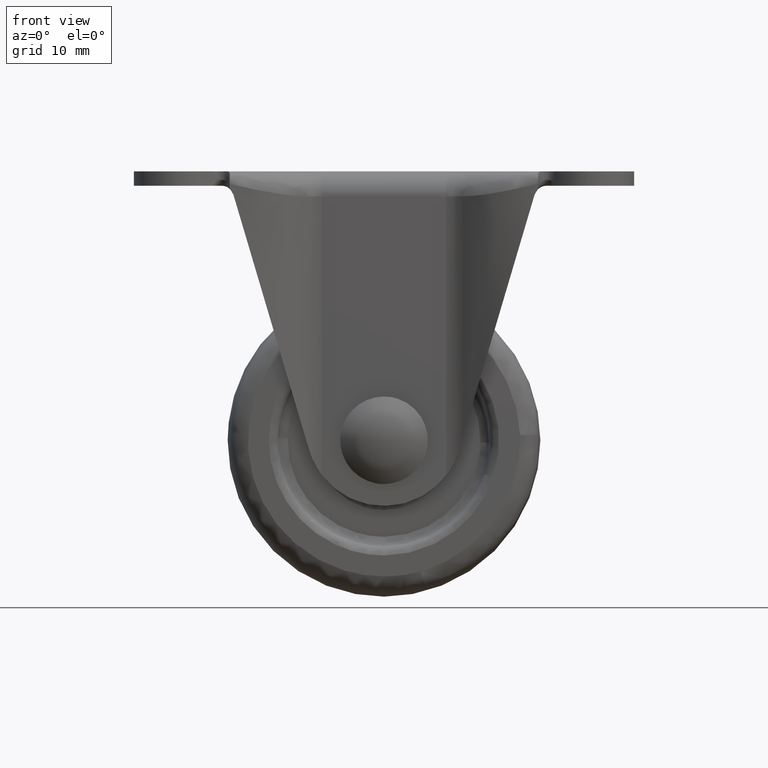
[diagram: clean part render]
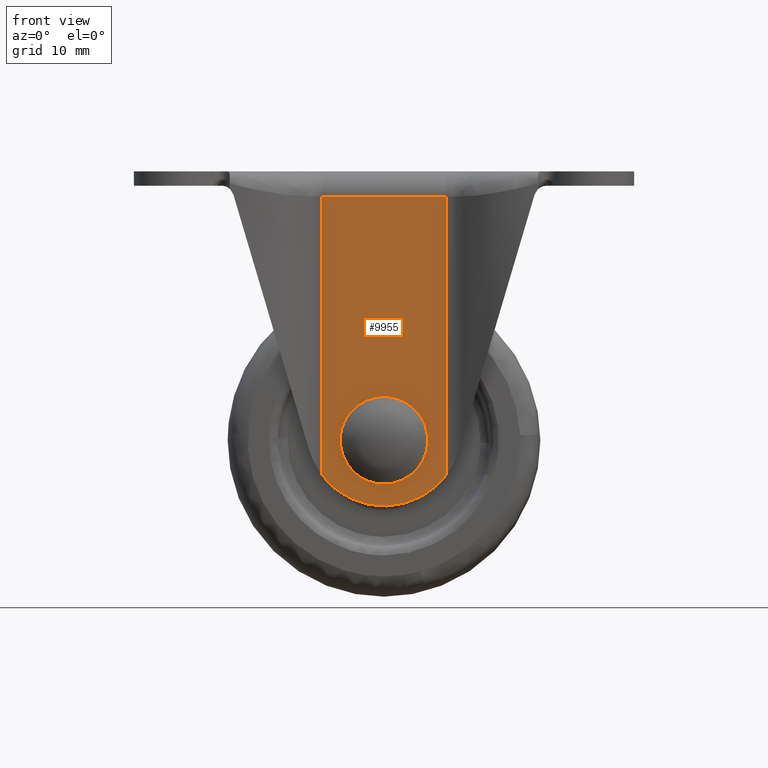
[diagram: same view with one face highlighted and labeled with its STEP entity id]
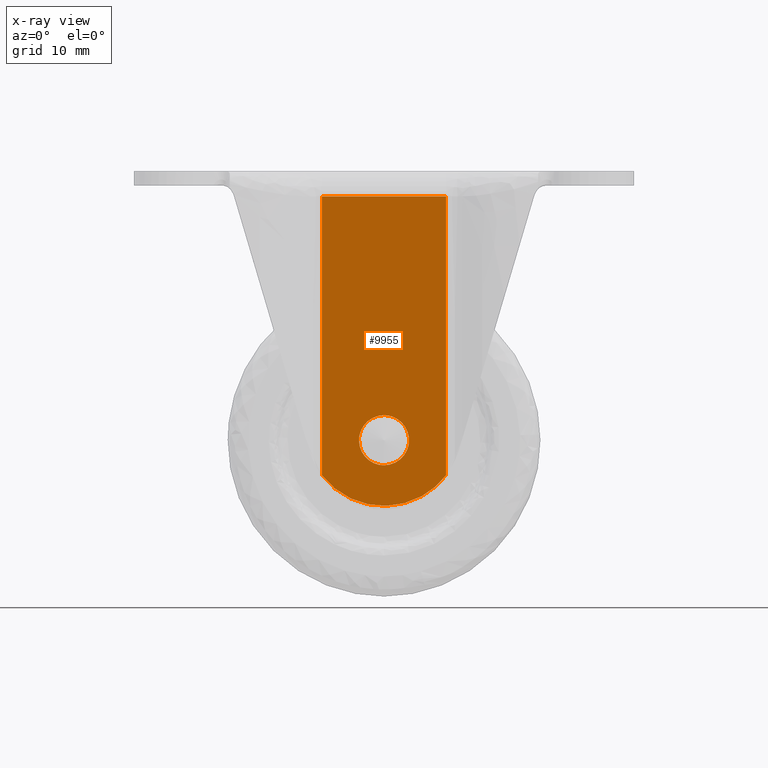
[diagram: x-ray of the same camera — body ghosted, the highlighted face saturated]
A machine part, front view. The second image highlights one B-rep face of the part: STEP entity #9955.
The next image is the same camera in x-ray: the body ghosted, the highlighted face saturated — about 0% of this face is hidden behind the body in this view.
In plain terms, the highlighted face is a freeform B-spline surface patch.
Its self-contained STEP definition (entity closure, byte-faithful):
#3637=CARTESIAN_POINT('',(-3.999847692254429,-18.0,-42.965093857748087));
#3638=VERTEX_POINT('',#3637);
#3644=CARTESIAN_POINT('',(0.0,-18.0,-47.0));
#3645=VERTEX_POINT('',#3644);
#3646=CARTESIAN_POINT('',(-3.999847692254429,-18.0,-42.965093857748087));
#3647=CARTESIAN_POINT('',(-4.0,-18.0,-42.982546596458768));
#3648=CARTESIAN_POINT('',(-4.0,-18.0,-43.0));
#3649=CARTESIAN_POINT('',(-4.000000000000000,-18.000000000000007,-47.000000000000007));
#3650=CARTESIAN_POINT('',(0.0,-18.0,-47.0));
#3658=(BOUNDED_CURVE()B_SPLINE_CURVE(2,(#3646,#3647,#3648,#3649,#3650),.UNSPECIFIED.,.F.,.U.)B_SPLINE_CURVE_WITH_KNOTS((3,2,3),(0.248460105642253,0.250000000000000,0.500000000000000),.UNSPECIFIED.)CURVE()GEOMETRIC_REPRESENTATION_ITEM()RATIONAL_B_SPLINE_CURVE((0.996414028047733,0.998195901539707,1.0,0.707106781186548,1.0))REPRESENTATION_ITEM(''));
#3659=EDGE_CURVE('',#3638,#3645,#3658,.T.);
#3661=CARTESIAN_POINT('',(3.969064855290666,-18.0,-43.496512008411152));
#3662=VERTEX_POINT('',#3661);
#3663=CARTESIAN_POINT('',(0.0,-18.0,-47.0));
#3664=CARTESIAN_POINT('',(3.530794400436268,-18.000000000000007,-47.000000000000014));
#3665=CARTESIAN_POINT('',(3.969064855290666,-18.000000000000004,-43.496512008411159));
#3673=(BOUNDED_CURVE()B_SPLINE_CURVE(2,(#3663,#3664,#3665),.UNSPECIFIED.,.F.,.U.)B_SPLINE_CURVE_WITH_KNOTS((3,3),(0.500000000000000,0.728526071021495),.UNSPECIFIED.)CURVE()GEOMETRIC_REPRESENTATION_ITEM()RATIONAL_B_SPLINE_CURVE((1.0,0.732265053902890,0.954005430259575))REPRESENTATION_ITEM(''));
#3674=EDGE_CURVE('',#3645,#3662,#3673,.T.);
#3724=CARTESIAN_POINT('',(0.0,-18.0,-38.999999999999993));
#3725=VERTEX_POINT('',#3724);
#3726=CARTESIAN_POINT('',(3.969064855290666,-18.000000000000007,-43.496512008411152));
#3727=CARTESIAN_POINT('',(4.0,-17.999999999999996,-43.249219710226889));
#3728=CARTESIAN_POINT('',(4.0,-18.0,-43.0));
#3729=CARTESIAN_POINT('',(4.000000000000000,-18.000000000000007,-38.999999999999993));
#3730=CARTESIAN_POINT('',(0.0,-18.0,-38.999999999999993));
#3738=(BOUNDED_CURVE()B_SPLINE_CURVE(2,(#3726,#3727,#3728,#3729,#3730),.UNSPECIFIED.,.F.,.U.)B_SPLINE_CURVE_WITH_KNOTS((3,2,3),(0.728526071021495,0.750000000000000,1.0),.UNSPECIFIED.)CURVE()GEOMETRIC_REPRESENTATION_ITEM()RATIONAL_B_SPLINE_CURVE((0.954005430259574,0.974841727283656,1.0,0.707106781186548,1.0))REPRESENTATION_ITEM(''));
#3739=EDGE_CURVE('',#3662,#3725,#3738,.T.);
#3741=CARTESIAN_POINT('',(0.0,-18.0,-38.999999999999993));
#3742=CARTESIAN_POINT('',(-3.965244841867532,-18.000000000000004,-38.999999999999993));
#3743=CARTESIAN_POINT('',(-3.999847692254430,-17.999999999999996,-42.965093857748087));
#3751=(BOUNDED_CURVE()B_SPLINE_CURVE(2,(#3741,#3742,#3743),.UNSPECIFIED.,.F.,.U.)B_SPLINE_CURVE_WITH_KNOTS((3,3),(0.0,0.248460105642253),.UNSPECIFIED.)CURVE()GEOMETRIC_REPRESENTATION_ITEM()RATIONAL_B_SPLINE_CURVE((1.0,0.708910879646840,0.996414028047733))REPRESENTATION_ITEM(''));
#3752=EDGE_CURVE('',#3725,#3638,#3751,.T.);
#6267=CARTESIAN_POINT('',(9.928238000000000,-18.0,-4.0));
#6268=VERTEX_POINT('',#6267);
#6328=CARTESIAN_POINT('',(-9.928238000000000,-18.0,-4.0));
#6329=VERTEX_POINT('',#6328);
#6343=CARTESIAN_POINT('',(9.928238000000000,-18.0,-4.0));
#6344=CARTESIAN_POINT('',(-9.928238000000000,-18.0,-4.0));
#6345=QUASI_UNIFORM_CURVE('',1,(#6343,#6344),.UNSPECIFIED.,.F.,.U.);
#6346=EDGE_CURVE('',#6268,#6329,#6345,.T.);
#8427=CARTESIAN_POINT('',(-9.928238000000000,-18.0,-48.594740267560503));
#8428=VERTEX_POINT('',#8427);
#8514=CARTESIAN_POINT('',(9.928238000000000,-18.0,-48.594741574811991));
#8515=VERTEX_POINT('',#8514);
#8531=CARTESIAN_POINT('',(-9.928237999999999,-18.0,-48.594740267560503));
#8532=CARTESIAN_POINT('',(-6.175893570873657,-18.000000000000004,-53.499999556844216));
#8533=CARTESIAN_POINT('',(-0.000000322937816,-18.0,-53.499999963434270));
#8534=CARTESIAN_POINT('',(6.175892924998025,-18.000000000000004,-53.500000370024338));
#8535=CARTESIAN_POINT('',(9.928238000000029,-18.0,-48.594741574812012));
#8543=(BOUNDED_CURVE()B_SPLINE_CURVE(2,(#8531,#8532,#8533,#8534,#8535),.UNSPECIFIED.,.F.,.U.)B_SPLINE_CURVE_WITH_KNOTS((3,2,3),(0.0,0.500000000000000,1.0),.UNSPECIFIED.)CURVE()GEOMETRIC_REPRESENTATION_ITEM()RATIONAL_B_SPLINE_CURVE((1.0,0.896543160316378,1.0,0.896543160316378,1.0))REPRESENTATION_ITEM(''));
#8544=EDGE_CURVE('',#8428,#8515,#8543,.T.);
#9333=CARTESIAN_POINT('',(9.928238000000000,-18.0,-48.594741574811991));
#9334=CARTESIAN_POINT('',(9.928238000000000,-18.0,-4.0));
#9335=QUASI_UNIFORM_CURVE('',1,(#9333,#9334),.UNSPECIFIED.,.F.,.U.);
#9336=EDGE_CURVE('',#8515,#6268,#9335,.T.);
#9357=CARTESIAN_POINT('',(-9.928238000000000,-18.0,-48.594740267560503));
#9358=CARTESIAN_POINT('',(-9.928238000000000,-18.0,-4.0));
#9359=QUASI_UNIFORM_CURVE('',1,(#9357,#9358),.UNSPECIFIED.,.F.,.U.);
#9360=EDGE_CURVE('',#8428,#6329,#9359,.T.);
#9938=CARTESIAN_POINT('',(-10.920068937714300,-18.0,-55.972524865667211));
#9939=CARTESIAN_POINT('',(-10.920068937714300,-18.0,-1.527473770073603));
#9940=CARTESIAN_POINT('',(10.920069470306490,-18.0,-55.972524865667211));
#9941=CARTESIAN_POINT('',(10.920069470306490,-18.0,-1.527473770073603));
#9942=B_SPLINE_SURFACE_WITH_KNOTS('',1,1,((#9938,#9940),(#9939,#9941)),.UNSPECIFIED.,.F.,.F.,.U.,(2,2),(2,2),(0.0,54.445051095593612),(0.0,21.840138408020781),.UNSPECIFIED.);
#9943=ORIENTED_EDGE('',*,*,#9336,.T.);
#9944=ORIENTED_EDGE('',*,*,#6346,.T.);
#9945=ORIENTED_EDGE('',*,*,#9360,.F.);
#9946=ORIENTED_EDGE('',*,*,#8544,.T.);
#9947=EDGE_LOOP('',(#9943,#9944,#9945,#9946));
#9948=FACE_OUTER_BOUND('',#9947,.T.);
#9949=ORIENTED_EDGE('',*,*,#3752,.F.);
#9950=ORIENTED_EDGE('',*,*,#3739,.F.);
#9951=ORIENTED_EDGE('',*,*,#3674,.F.);
#9952=ORIENTED_EDGE('',*,*,#3659,.F.);
#9953=EDGE_LOOP('',(#9949,#9950,#9951,#9952));
#9954=FACE_BOUND('',#9953,.T.);
#9955=ADVANCED_FACE('',(#9948,#9954),#9942,.F.);